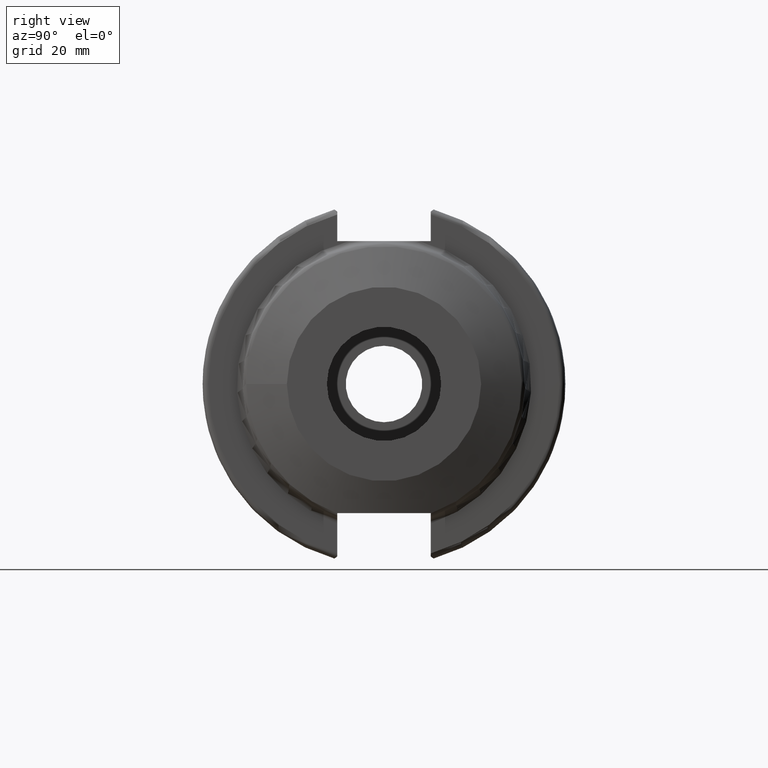
[diagram: clean part render]
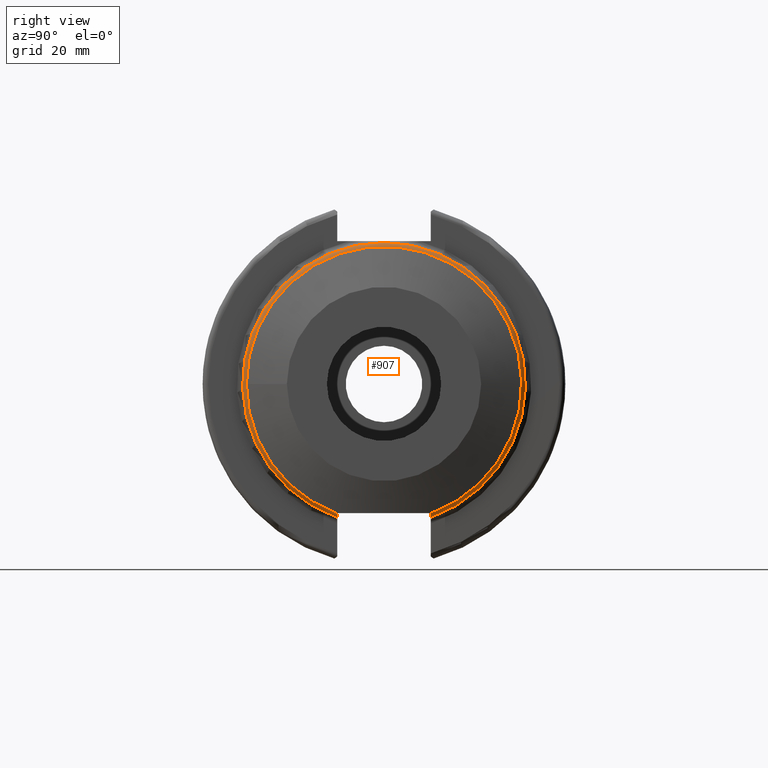
[diagram: same view with one face highlighted and labeled with its STEP entity id]
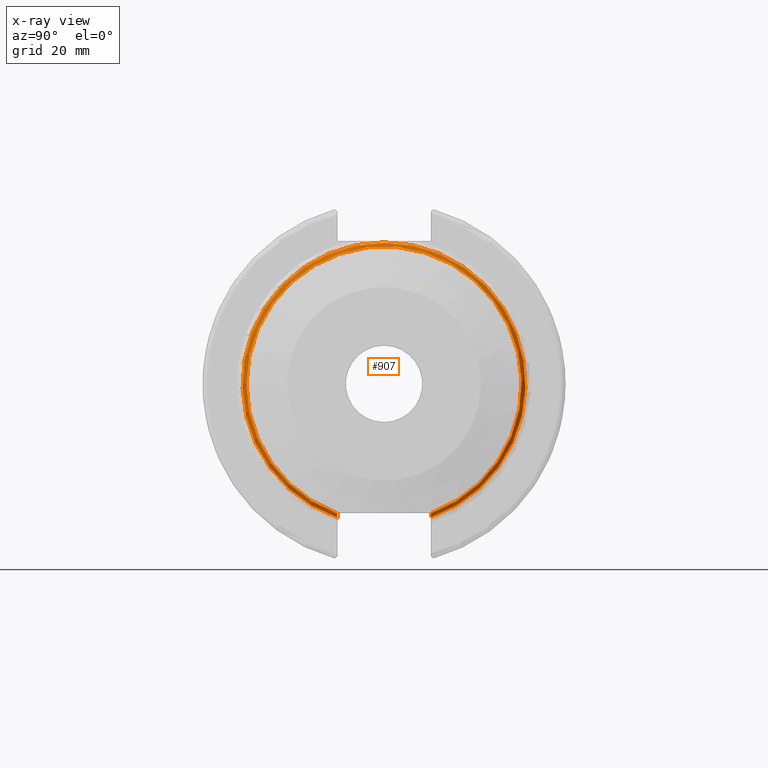
[diagram: x-ray of the same camera — body ghosted, the highlighted face saturated]
A machine part, right view. The second image highlights one B-rep face of the part: STEP entity #907.
The next image is the same camera in x-ray: the body ghosted, the highlighted face saturated — about 0% of this face is hidden behind the body in this view.
In plain terms, the highlighted toroidal blend (fillet) surface has major radius 23.75 mm and minor (blend) radius 1 mm.
Its self-contained STEP definition (entity closure, byte-faithful):
#196=FACE_OUTER_BOUND('',#249,.T.);
#249=EDGE_LOOP('',(#613,#614,#615,#616,#617));
#307=CIRCLE('',#984,24.0920201433257);
#308=CIRCLE('',#985,24.0920201433257);
#309=CIRCLE('',#986,24.75);
#353=B_SPLINE_CURVE_WITH_KNOTS('',3,(#1342,#1343,#1344,#1345,#1346,#1347,
#1348,#1349,#1350,#1351),.UNSPECIFIED.,.F.,.F.,(4,2,2,2,4),(0.,0.0363210830816464,
0.0737435924401787,0.112597438074469,0.118050935812593),.UNSPECIFIED.);
#354=B_SPLINE_CURVE_WITH_KNOTS('',3,(#1357,#1358,#1359,#1360,#1361,#1362,
#1363,#1364,#1365,#1366),.UNSPECIFIED.,.F.,.F.,(4,2,2,2,4),(-0.118050935812593,
-0.112597438074469,-0.0737435924401787,-0.0363210830816464,0.),
 .UNSPECIFIED.);
#375=VERTEX_POINT('',#1340);
#376=VERTEX_POINT('',#1341);
#377=VERTEX_POINT('',#1352);
#378=VERTEX_POINT('',#1354);
#379=VERTEX_POINT('',#1356);
#470=EDGE_CURVE('',#375,#376,#353,.T.);
#471=EDGE_CURVE('',#376,#377,#307,.T.);
#472=EDGE_CURVE('',#377,#378,#308,.T.);
#473=EDGE_CURVE('',#378,#379,#354,.T.);
#474=EDGE_CURVE('',#379,#375,#309,.T.);
#613=ORIENTED_EDGE('',*,*,#470,.T.);
#614=ORIENTED_EDGE('',*,*,#471,.T.);
#615=ORIENTED_EDGE('',*,*,#472,.T.);
#616=ORIENTED_EDGE('',*,*,#473,.T.);
#617=ORIENTED_EDGE('',*,*,#474,.T.);
#899=TOROIDAL_SURFACE('',#983,23.75,1.);
#907=ADVANCED_FACE('',(#196),#899,.T.);
#983=AXIS2_PLACEMENT_3D('',#1339,#1084,#1085);
#984=AXIS2_PLACEMENT_3D('',#1353,#1086,#1087);
#985=AXIS2_PLACEMENT_3D('',#1355,#1088,#1089);
#986=AXIS2_PLACEMENT_3D('',#1367,#1090,#1091);
#1084=DIRECTION('center_axis',(1.,0.,0.));
#1085=DIRECTION('ref_axis',(0.,-1.22464679914735E-16,1.));
#1086=DIRECTION('center_axis',(-1.,0.,0.));
#1087=DIRECTION('ref_axis',(0.,1.11022302462516E-16,1.));
#1088=DIRECTION('center_axis',(-1.,0.,0.));
#1089=DIRECTION('ref_axis',(0.,1.11022302462516E-16,1.));
#1090=DIRECTION('center_axis',(1.,0.,0.));
#1091=DIRECTION('ref_axis',(0.,1.22464679914735E-16,1.));
#1339=CARTESIAN_POINT('Origin',(21.0790231462272,0.,0.));
#1340=CARTESIAN_POINT('',(21.0790231462272,-8.19,-23.3556502799644));
#1341=CARTESIAN_POINT('',(22.0187157670131,-8.19,-22.6572137427886));
#1342=CARTESIAN_POINT('Ctrl Pts',(21.0790231462272,-8.19,-23.3556502799644));
#1343=CARTESIAN_POINT('Ctrl Pts',(21.200093423166,-8.19,-23.3556502799644));
#1344=CARTESIAN_POINT('Ctrl Pts',(21.3423483911035,-8.19,-23.3261365320374));
#1345=CARTESIAN_POINT('Ctrl Pts',(21.5683061397845,-8.19,-23.2293552178989));
#1346=CARTESIAN_POINT('Ctrl Pts',(21.6910507079308,-8.19,-23.143676292266));
#1347=CARTESIAN_POINT('Ctrl Pts',(21.867604329061,-8.19,-22.9607167937451));
#1348=CARTESIAN_POINT('Ctrl Pts',(21.9512548995632,-8.19,-22.8297338819442));
#1349=CARTESIAN_POINT('Ctrl Pts',(22.0060871327019,-8.19,-22.6925985458896));
#1350=CARTESIAN_POINT('Ctrl Pts',(22.0125806281203,-8.19,-22.6751373429374));
#1351=CARTESIAN_POINT('Ctrl Pts',(22.0187157670131,-8.19,-22.6572137427886));
#1352=CARTESIAN_POINT('',(22.0187157670131,-24.0920201433257,-2.95042153535173E-15));
#1353=CARTESIAN_POINT('Origin',(22.0187157670131,-1.19954077960946E-15,
0.));
#1354=CARTESIAN_POINT('',(22.0187157670131,8.19,-22.6572137427886));
#1355=CARTESIAN_POINT('Origin',(22.0187157670131,-1.19954077960946E-15,
0.));
#1356=CARTESIAN_POINT('',(21.0790231462272,8.19,-23.3556502799644));
#1357=CARTESIAN_POINT('Ctrl Pts',(22.0187157670131,8.19,-22.6572137427886));
#1358=CARTESIAN_POINT('Ctrl Pts',(22.0125806281203,8.19,-22.6751373429374));
#1359=CARTESIAN_POINT('Ctrl Pts',(22.0060871327019,8.19,-22.6925985458896));
#1360=CARTESIAN_POINT('Ctrl Pts',(21.9512548995632,8.19,-22.8297338819442));
#1361=CARTESIAN_POINT('Ctrl Pts',(21.867604329061,8.19,-22.9607167937451));
#1362=CARTESIAN_POINT('Ctrl Pts',(21.6910507079308,8.19,-23.143676292266));
#1363=CARTESIAN_POINT('Ctrl Pts',(21.5683061397845,8.19,-23.2293552178989));
#1364=CARTESIAN_POINT('Ctrl Pts',(21.3423483911035,8.19,-23.3261365320374));
#1365=CARTESIAN_POINT('Ctrl Pts',(21.200093423166,8.19,-23.3556502799644));
#1366=CARTESIAN_POINT('Ctrl Pts',(21.0790231462272,8.19,-23.3556502799644));
#1367=CARTESIAN_POINT('Origin',(21.0790231462272,0.,0.));